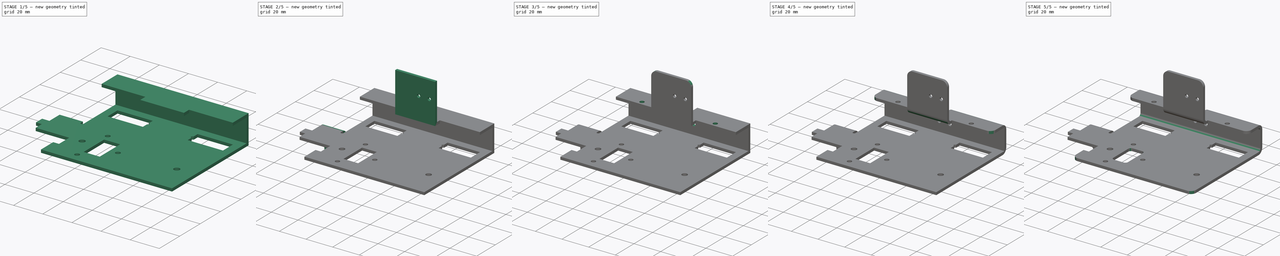
[diagram: build sequence overview — one tinted view per stage of 5, left to right]
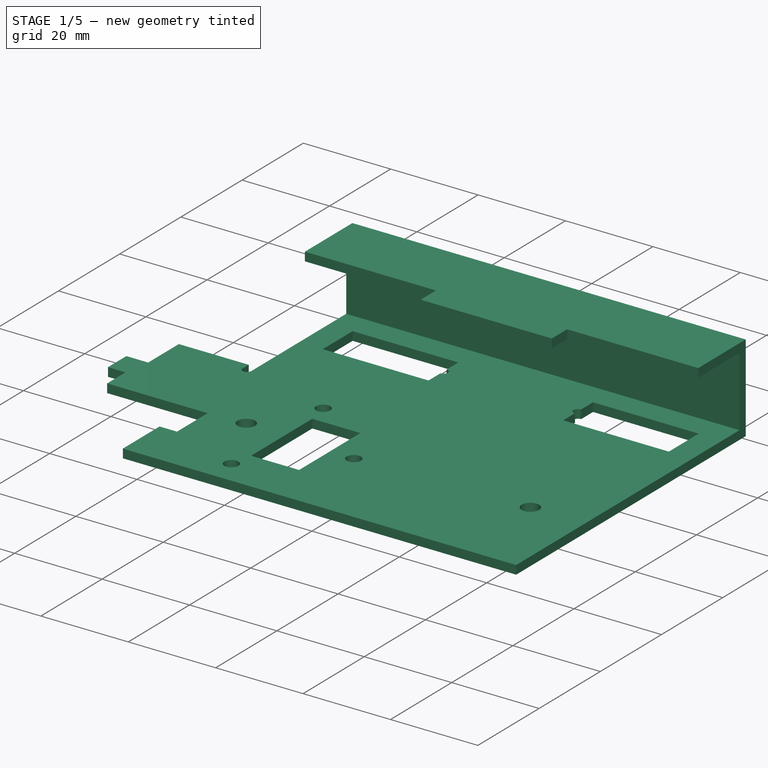
[diagram: stage 1 of 5 — iso view after this stage's code; geometry added in this stage tinted green]
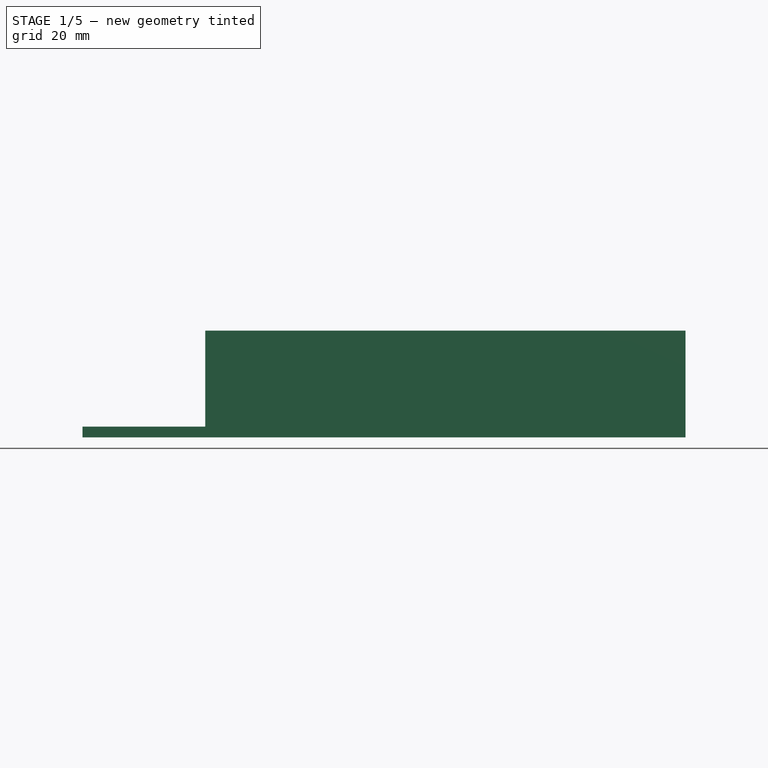
[diagram: stage 1 of 5 — front view after this stage's code; geometry added in this stage tinted green]
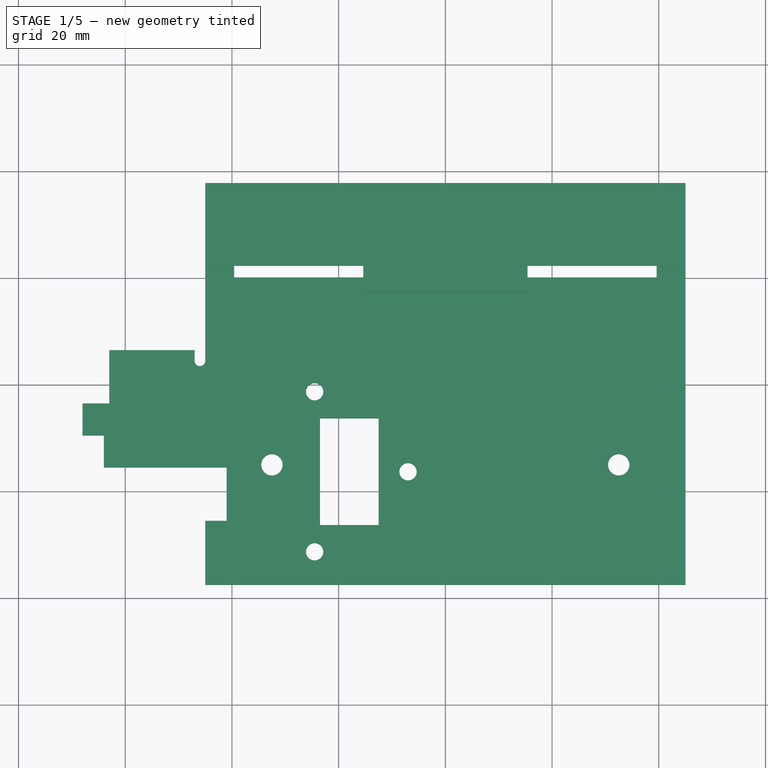
[diagram: stage 1 of 5 — top view after this stage's code; geometry added in this stage tinted green]
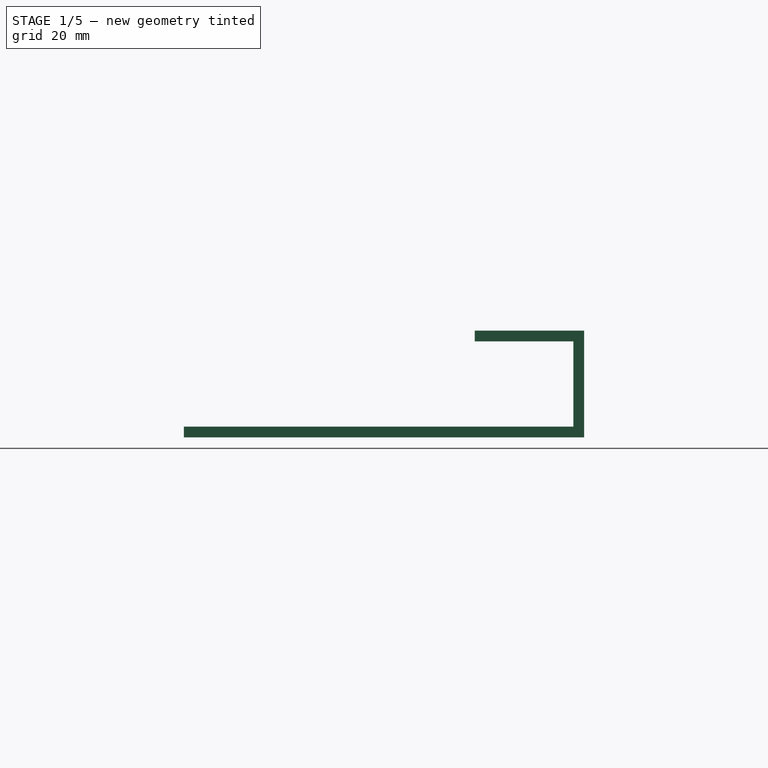
[diagram: stage 1 of 5 — right view after this stage's code; geometry added in this stage tinted green]
FCSTD DOCUMENT  (FreeCAD 0.14R3310 (Git))
Label: 71. PLACA LATERAL MOTOR
License: CC-BY 3.0
LicenseURL: http://creativecommons.org/licenses/by/3.0/
objects: Sketcher::SketchObject×10, PartDesign::Fillet×10, PartDesign::Pad×6, PartDesign::Pocket×4
note: 40 computed .brp shape members not serialized (recipe doc carries the construction recipe); baked Part::Feature solids carry a one-line shape summary decoded from their .brp

FEATURE [Sketcher::SketchObject] Sketch
  sketch-geometry (40):
    g0: LineSegment StartX=-45 StartY=37.5 StartZ=0 EndX=45 EndY=37.5 EndZ=0
    g1: LineSegment StartX=45 StartY=37.5 StartZ=0 EndX=45 EndY=-37.5 EndZ=0
    g2: LineSegment StartX=45 StartY=-37.5 StartZ=0 EndX=-45 EndY=-37.5 EndZ=0
    g3: LineSegment [constr] StartX=-45 StartY=-37.5 StartZ=0 EndX=-45 EndY=37.5 EndZ=0
    g4: LineSegment StartX=-39.6 StartY=29.87 StartZ=0 EndX=-15.4 EndY=29.87 EndZ=0
    g5: LineSegment [constr] StartX=-15.4 StartY=29.87 StartZ=0 EndX=-15.4 EndY=20.12 EndZ=0
    g6: LineSegment StartX=-15.4 StartY=20.12 StartZ=0 EndX=-39.6 EndY=20.12 EndZ=0
    g7: LineSegment StartX=-39.6 StartY=20.12 StartZ=0 EndX=-39.6 EndY=29.87 EndZ=0
    g8: LineSegment StartX=15.4 StartY=29.87 StartZ=0 EndX=39.6 EndY=29.87 EndZ=0
    g9: LineSegment StartX=39.6 StartY=29.87 StartZ=0 EndX=39.6 EndY=20.12 EndZ=0
    g10: LineSegment StartX=39.6 StartY=20.12 StartZ=0 EndX=15.4 EndY=20.12 EndZ=0
    g11: LineSegment [constr] StartX=15.4 StartY=20.12 StartZ=0 EndX=15.4 EndY=29.87 EndZ=0
    g12: ArcOfCircle CenterX=-15.4 CenterY=25 CenterZ=0 NormalX=0 NormalY=0 NormalZ=1 Radius=1 StartAngle=4.71239 EndAngle=7.85398
    g13: ArcOfCircle CenterX=15.4 CenterY=25 CenterZ=0 NormalX=0 NormalY=0 NormalZ=1 Radius=1 StartAngle=1.5708 EndAngle=4.71239
    g14: LineSegment StartX=-15.4 StartY=26 StartZ=0 EndX=-15.4 EndY=29.87 EndZ=0
    g15: LineSegment StartX=-15.4 StartY=24 StartZ=0 EndX=-15.4 EndY=20.12 EndZ=0
    g16: LineSegment StartX=15.4 StartY=29.87 StartZ=0 EndX=15.4 EndY=26 EndZ=0
    g17: LineSegment StartX=15.4 StartY=24 StartZ=0 EndX=15.4 EndY=20.12 EndZ=0
    g18: LineSegment StartX=-23.5 StartY=-6.3 StartZ=0 EndX=-12.5 EndY=-6.3 EndZ=0
    g19: LineSegment StartX=-12.5 StartY=-6.3 StartZ=0 EndX=-12.5 EndY=-26.3 EndZ=0
    g20: LineSegment StartX=-12.5 StartY=-26.3 StartZ=0 EndX=-23.5 EndY=-26.3 EndZ=0
    g21: LineSegment StartX=-23.5 StartY=-26.3 StartZ=0 EndX=-23.5 EndY=-6.3 EndZ=0
    g22: LineSegment StartX=-45 StartY=-25.5 StartZ=0 EndX=-41 EndY=-25.5 EndZ=0
    g23: LineSegment StartX=-45 StartY=-37.5 StartZ=0 EndX=-45 EndY=-25.5 EndZ=0
    g24: LineSegment StartX=-41 StartY=-25.5 StartZ=0 EndX=-41 EndY=-15.5 EndZ=0
    g25: LineSegment StartX=-41 StartY=-15.5 StartZ=0 EndX=-64 EndY=-15.5 EndZ=0
    g26: LineSegment StartX=-64 StartY=-15.5 StartZ=0 EndX=-64 EndY=-9.5 EndZ=0
    g27: LineSegment StartX=-64 StartY=-9.5 StartZ=0 EndX=-68 EndY=-9.5 EndZ=0
    g28: LineSegment StartX=-68 StartY=-9.5 StartZ=0 EndX=-68 EndY=-3.5 EndZ=0
    g29: LineSegment StartX=-68 StartY=-3.5 StartZ=0 EndX=-63 EndY=-3.5 EndZ=0
    g30: LineSegment StartX=-63 StartY=-3.5 StartZ=0 EndX=-63 EndY=6.5 EndZ=0
    g31: LineSegment StartX=-63 StartY=6.5 StartZ=0 EndX=-47 EndY=6.5 EndZ=0
    g32: LineSegment StartX=-45 StartY=37.5 StartZ=0 EndX=-45 EndY=4.49999 EndZ=0
    g33: ArcOfCircle CenterX=-46 CenterY=4.5 CenterZ=0 NormalX=0 NormalY=0 NormalZ=1 Radius=1 StartAngle=3.1416 EndAngle=6.28317
    g34: LineSegment StartX=-47 StartY=6.5 StartZ=0 EndX=-47 EndY=4.49999 EndZ=0
    g35: Circle CenterX=-32.5 CenterY=-15 CenterZ=0 NormalX=0 NormalY=0 NormalZ=1 Radius=2
    g36: Circle CenterX=32.5 CenterY=-15 CenterZ=0 NormalX=0 NormalY=0 NormalZ=1 Radius=2
    g37: Circle CenterX=-24.5 CenterY=-31.3 CenterZ=0 NormalX=0 NormalY=0 NormalZ=1 Radius=1.62
    g38: Circle CenterX=-24.5 CenterY=-1.3 CenterZ=0 NormalX=0 NormalY=0 NormalZ=1 Radius=1.62
    g39: Circle CenterX=-7 CenterY=-16.3 CenterZ=0 NormalX=0 NormalY=0 NormalZ=1 Radius=1.62
  constraints (117):
    c: Coincident(g0,g1)
    c: Coincident(g1,g2)
    c: Coincident(g2,g3)
    c: Coincident(g3,g0)
    c: Horizontal(g0)
    c: Horizontal(g2)
    c: Vertical(g1)
    c: Vertical(g3)
    c: Symmetric(g1,g0,g-1)
    c: Distance(g0) = 90
    c: Distance(g1) = 75
    c: Coincident(g4,g5)
    c: Coincident(g5,g6)
    c: Coincident(g6,g7)
    c: Coincident(g7,g4)
    c: Horizontal(g4)
    c: Horizontal(g6)
    c: Vertical(g5)
    c: Vertical(g7)
    c: Coincident(g8,g9)
    c: Coincident(g9,g10)
    c: Coincident(g10,g11)
    c: Coincident(g11,g8)
    c: Horizontal(g8)
    c: Horizontal(g10)
    c: Vertical(g9)
    c: Vertical(g11)
    c: Symmetric(g8,g4,g-2)
    c: Symmetric(g9,g6,g-2)
    c: Distance(g7) = 9.75
    c: Distance(g4) = 24.2
    c: Distance(g4,g8) = 30.8
    c: Distance(g4,g0) = 7.63
    c: PointOnObject(g12,g5)
    c: PointOnObject(g12,g5)
    c: PointOnObject(g12,g5)
    c: PointOnObject(g13,g11)
    c: PointOnObject(g13,g11)
    c: PointOnObject(g13,g11)
    c: Equal(g13,g12)
    c: Coincident(g14,g12)
    c: Coincident(g14,g4)
    c: Distance(g4,g12) = 3.87
    c: Radius(g12) = 1
    c: Coincident(g15,g12)
    c: Coincident(g15,g5)
    c: Coincident(g16,g8)
    c: Coincident(g16,g13)
    c: Distance(g8,g13) = 3.87
    c: Coincident(g17,g13)
    c: Coincident(g17,g10)
    c: Coincident(g18,g19)
    c: Coincident(g19,g20)
    c: Coincident(g20,g21)
    c: Coincident(g21,g18)
    c: Horizontal(g18)
    c: Horizontal(g20)
    c: Vertical(g19)
    c: Vertical(g21)
    c: Distance(g18) = 11
    c: Distance(g19) = 20
    c: DistanceX(g-2,g18) = -12.5
    c: DistanceY(g-1,g18) = -6.3
    c: PointOnObject(g22,g3)
    c: Horizontal(g22)
    c: Distance(g22,g2) = 12
    c: Distance(g22) = 4
    c: Coincident(g23,g2)
    c: Coincident(g23,g22)
    c: Coincident(g24,g22)
    c: Vertical(g24)
    c: Distance(g24) = 10
    c: Coincident(g25,g24)
    c: Horizontal(g25)
    c: Distance(g25) = 23
    c: Coincident(g26,g25)
    c: Vertical(g26)
    c: Distance(g26) = 6
    c: Coincident(g27,g26)
    c: Horizontal(g27)
    c: Distance(g27) = 4
    c: Coincident(g28,g27)
    c: Vertical(g28)
    c: Distance(g28) = 6
    c: Coincident(g29,g28)
    c: Horizontal(g29)
    c: Distance(g29) = 5
    c: Coincident(g30,g29)
    c: Vertical(g30)
    c: Distance(g30) = 10
    c: Coincident(g31,g30)
    c: Horizontal(g31)
    c: Distance(g31) = 16
    c: Coincident(g32,g0)
    c: PointOnObject(g32,g3)
    c: PointOnObject(g33,g3)
    c: Coincident(g32,g33)
    c: Tangent(g3,g33)
    c: Coincident(g34,g31)
    c: Coincident(g34,g33)
    c: Vertical(g34)
    c: Tangent(g33,g34)
    c: Distance(g33,g0) = 33
    c: Equal(g36,g35)
    c: Radius(g35) = 2
    c: Symmetric(g36,g35,g-2)
    c: Distance(g35,g2) = 22.5
    c: Distance(g35,g36) = 65
    c: Distance(g37,g2) = 6.2
    c: Radius(g37) = 1.62
    c: Distance(g37,g21) = 1
    c: Equal(g38,g37)
    c: Distance(g38,g21) = 1
    c: Distance(g38,g37) = 30
    c: Equal(g39,g38)
    c: Distance(g39,g19) = 5.5
    c: Distance(g39,g2) = 21.2
FEATURE [PartDesign::Pad] Pad
  Length = 2
  Length2 = 100
  Sketch = -> Sketch
  Type = 0
FEATURE [Sketcher::SketchObject] Sketch001
  ExternalGeometry = -> [Pad]
  Placement = pos=(0,37.5,0) rot=(0,0.707107,0.707107;3.14159rad)
  Support = -> Pad [Face16]
  sketch-geometry (4):
    g0: LineSegment StartX=-45 StartY=0 StartZ=0 EndX=45 EndY=0 EndZ=0
    g1: LineSegment StartX=45 StartY=0 StartZ=0 EndX=45 EndY=20 EndZ=0
    g2: LineSegment StartX=45 StartY=20 StartZ=0 EndX=-45 EndY=20 EndZ=0
    g3: LineSegment StartX=-45 StartY=20 StartZ=0 EndX=-45 EndY=0 EndZ=0
  constraints (12):
    c: Coincident(g0,g1)
    c: Coincident(g1,g2)
    c: Coincident(g2,g3)
    c: Coincident(g3,g0)
    c: Horizontal(g0)
    c: Horizontal(g2)
    c: Vertical(g1)
    c: Vertical(g3)
    c: PointOnObject(g0,g-1)
    c: Coincident(g0,g-4)
    c: Distance(g1) = 20
    c: Coincident(g0,g-3)
FEATURE [PartDesign::Pad] Pad001
  Length = 2
  Length2 = 100
  Reversed = true
  Sketch = -> Sketch001
  Type = 0
FEATURE [Sketcher::SketchObject] Sketch002
  ExternalGeometry = -> [Pad001]
  Placement = pos=(0,0,20) rot=(0,0,1;0rad)
  Support = -> Pad001 [Face37]
  sketch-geometry (4):
    g0: LineSegment StartX=-45 StartY=37.5 StartZ=0 EndX=45 EndY=37.5 EndZ=0
    g1: LineSegment StartX=45 StartY=37.5 StartZ=0 EndX=45 EndY=22 EndZ=0
    g2: LineSegment StartX=45 StartY=22 StartZ=0 EndX=-45 EndY=22 EndZ=0
    g3: LineSegment StartX=-45 StartY=22 StartZ=0 EndX=-45 EndY=37.5 EndZ=0
  constraints (11):
    c: Coincident(g0,g1)
    c: Coincident(g1,g2)
    c: Coincident(g2,g3)
    c: Coincident(g3,g0)
    c: Horizontal(g0)
    c: Horizontal(g2)
    c: Vertical(g1)
    c: Vertical(g3)
    c: Coincident(g0,g-4)
    c: Coincident(g0,g-3)
    c: Distance(g1) = 15.5
FEATURE [PartDesign::Pad] Pad002
  Length = 2
  Length2 = 100
  Reversed = true
  Sketch = -> Sketch002
  Type = 0
FEATURE [Sketcher::SketchObject] Sketch003
  ExternalGeometry = -> [Pad002]
  Placement = pos=(0,22,0) rot=(1,0,0;1.5708rad)
  Support = -> Pad002 [Face39]
  sketch-geometry (4):
    g0: LineSegment StartX=-15 StartY=20 StartZ=0 EndX=15 EndY=20 EndZ=0
    g1: LineSegment StartX=15 StartY=20 StartZ=0 EndX=15 EndY=18 EndZ=0
    g2: LineSegment StartX=15 StartY=18 StartZ=0 EndX=-15 EndY=18 EndZ=0
    g3: LineSegment StartX=-15 StartY=18 StartZ=0 EndX=-15 EndY=20 EndZ=0
  constraints (12):
    c: Coincident(g0,g1)
    c: Coincident(g1,g2)
    c: Coincident(g2,g3)
    c: Coincident(g3,g0)
    c: Horizontal(g0)
    c: Horizontal(g2)
    c: Vertical(g1)
    c: Vertical(g3)
    c: PointOnObject(g0,g-3)
    c: Symmetric(g0,g0,g-2)
    c: Distance(g2) = 30
    c: Distance(g3) = 2
FEATURE [PartDesign::Pad] Pad003
  Length = 5
  Length2 = 100
  Sketch = -> Sketch003
  Type = 0
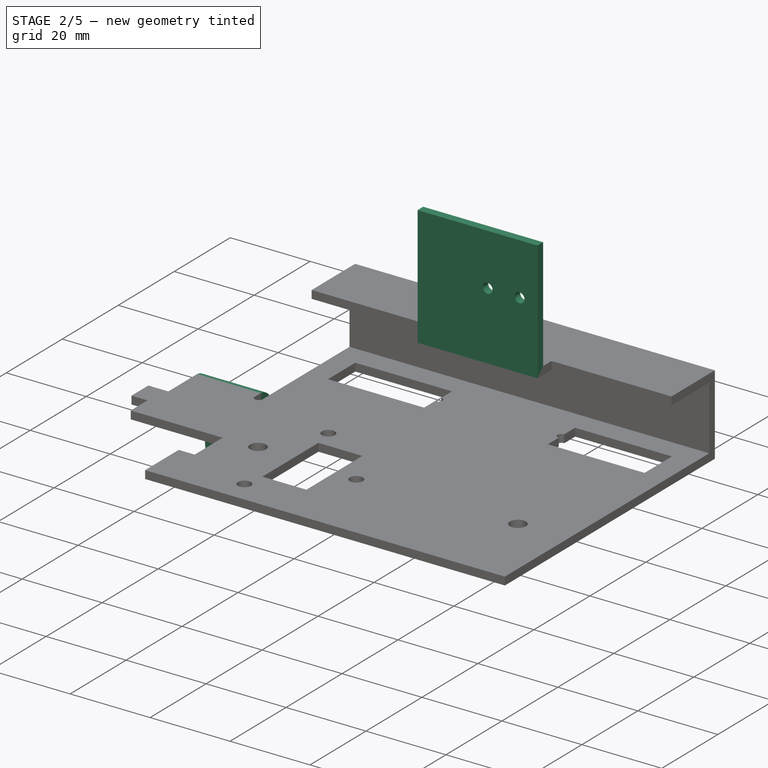
[diagram: stage 2 of 5 — iso view after this stage's code; geometry added in this stage tinted green]
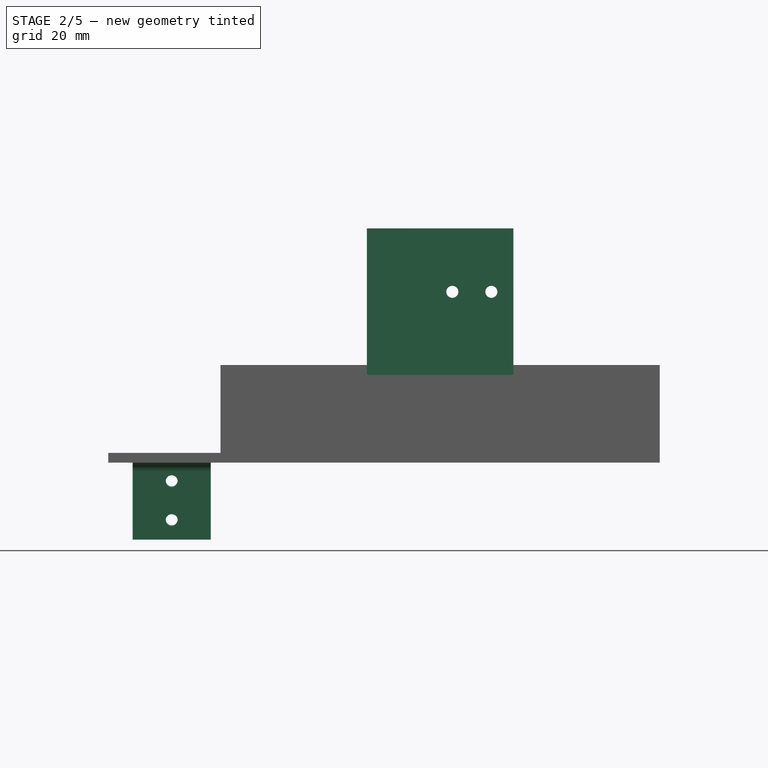
[diagram: stage 2 of 5 — front view after this stage's code; geometry added in this stage tinted green]
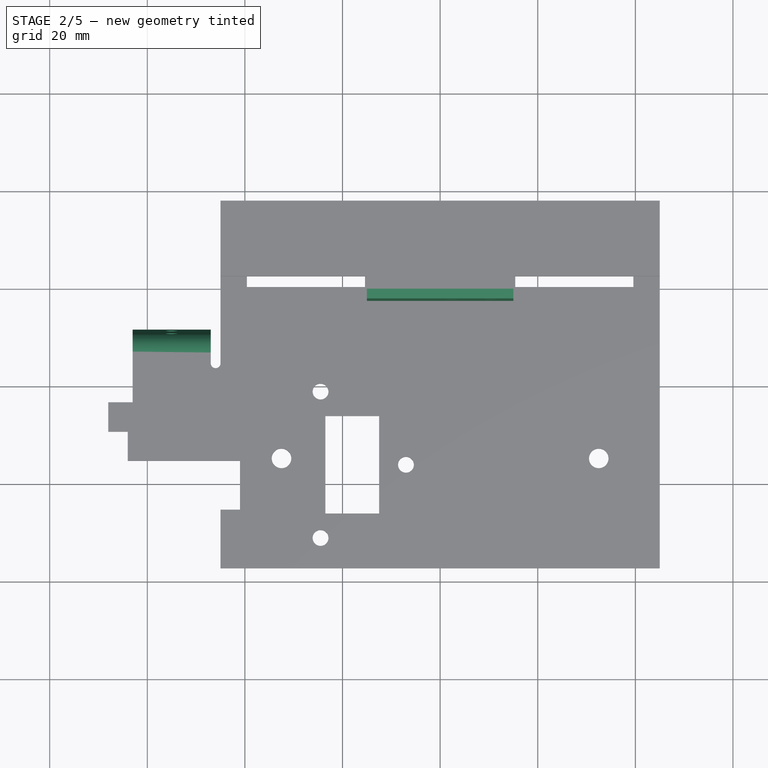
[diagram: stage 2 of 5 — top view after this stage's code; geometry added in this stage tinted green]
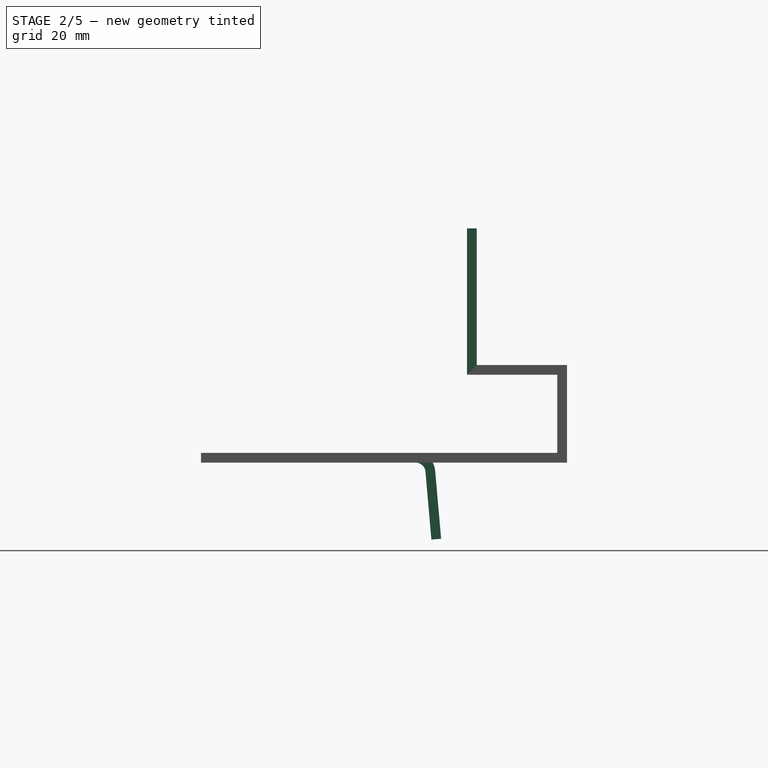
[diagram: stage 2 of 5 — right view after this stage's code; geometry added in this stage tinted green]
FEATURE [Sketcher::SketchObject] Sketch004
  ExternalGeometry = -> [Pad003]
  Placement = pos=(0,17,0) rot=(1,0,0;1.5708rad)
  Support = -> Pad003 [Face45]
  sketch-geometry (4):
    g0: LineSegment StartX=-15 StartY=18 StartZ=0 EndX=15 EndY=18 EndZ=0
    g1: LineSegment StartX=15 StartY=18 StartZ=0 EndX=15 EndY=48 EndZ=0
    g2: LineSegment StartX=15 StartY=48 StartZ=0 EndX=-15 EndY=48 EndZ=0
    g3: LineSegment StartX=-15 StartY=48 StartZ=0 EndX=-15 EndY=18 EndZ=0
  constraints (11):
    c: Coincident(g0,g1)
    c: Coincident(g1,g2)
    c: Coincident(g2,g3)
    c: Coincident(g3,g0)
    c: Horizontal(g0)
    c: Horizontal(g2)
    c: Vertical(g1)
    c: Vertical(g3)
    c: Coincident(g0,g-3)
    c: PointOnObject(g0,g-4)
    c: Distance(g1) = 30
FEATURE [PartDesign::Pad] Pad004
  Length = 2
  Length2 = 100
  Reversed = true
  Sketch = -> Sketch004
  Type = 0
FEATURE [Sketcher::SketchObject] Sketch005
  ExternalGeometry = -> [Pad004]
  Placement = pos=(-63,0,0) rot=(0.57735,-0.57735,-0.57735;2.0944rad)
  Support = -> Pad004 [Face20]
  sketch-geometry (6):
    g0: ArcOfCircle CenterX=-6.5 CenterY=-2 CenterZ=0 NormalX=0 NormalY=0 NormalZ=1 Radius=2 StartAngle=1.5708 EndAngle=3.05433
    g1: LineSegment StartX=-8.49239 StartY=-1.82569 StartZ=0 EndX=-9.71257 EndY=-15.7724 EndZ=0
    g2: LineSegment StartX=-9.71257 StartY=-15.7724 StartZ=0 EndX=-11.705 EndY=-15.5981 EndZ=0
    g3: LineSegment StartX=-11.705 StartY=-15.5981 StartZ=0 EndX=-10.4848 EndY=-1.65136 EndZ=0
    g4: ArcOfCircle CenterX=-6.5 CenterY=-2 CenterZ=0 NormalX=0 NormalY=0 NormalZ=1 Radius=4 StartAngle=1.5708 EndAngle=3.05432
    g5: LineSegment StartX=-6.5 StartY=2 StartZ=0 EndX=-6.5 EndY=0 EndZ=0
  constraints (17):
    c: Coincident(g0,g-3)
    c: Radius(g0) = 2
    c: Tangent(g0,g-1)
    c: Coincident(g1,g0)
    c: Tangent(g1,g0)
    c: Angle(g1,g-1) = 1.65806
    c: Distance(g1) = 14
    c: Coincident(g2,g1)
    c: Angle(g1,g2) = 1.5708
    c: Distance(g2) = 2
    c: Coincident(g3,g2)
    c: Distance(g3,g0) = 2
    c: Coincident(g4,g0)
    c: Coincident(g4,g-3)
    c: Coincident(g4,g3)
    c: Coincident(g5,g4)
    c: Coincident(g5,g0)
FEATURE [PartDesign::Pad] Pad005
  Length = 16
  Length2 = 100
  Reversed = true
  Sketch = -> Sketch005
  Type = 0
FEATURE [Sketcher::SketchObject] Sketch006
  ExternalGeometry = -> [Pad005]
  Placement = pos=(0,19,0) rot=(0,0.707107,0.707107;3.14159rad)
  Support = -> Pad005 [Face50]
  sketch-geometry (2):
    g0: Circle CenterX=-10.5 CenterY=35 CenterZ=0 NormalX=0 NormalY=0 NormalZ=1 Radius=1.23
    g1: Circle CenterX=-2.5 CenterY=35 CenterZ=0 NormalX=0 NormalY=0 NormalZ=1 Radius=1.23
  constraints (6):
    c: Equal(g1,g0)
    c: Radius(g1) = 1.23
    c: Distance(g1,g0) = 8
    c: Distance(g0,g-3) = 13
    c: Distance(g1,g-3) = 13
    c: Distance(g0,g-4) = 4.5
FEATURE [PartDesign::Pocket] Pocket
  Length = 5
  Sketch = -> Sketch006
  Type = 0
FEATURE [Sketcher::SketchObject] Sketch007
  ExternalGeometry = -> [Pocket]
  Placement = pos=(0,10.2618,0.897787) rot=(0,0.67559,0.737277;3.14159rad)
  Support = -> Pocket [Face9]
  sketch-geometry (2):
    g0: Circle CenterX=55 CenterY=-4.5589 CenterZ=0 NormalX=0 NormalY=0 NormalZ=1 Radius=1.23
    g1: Circle CenterX=55 CenterY=-12.5589 CenterZ=0 NormalX=0 NormalY=0 NormalZ=1 Radius=1.23
  constraints (6):
    c: Equal(g0,g1)
    c: Radius(g0) = 1.23
    c: Distance(g1,g-4) = 8
    c: Distance(g0,g-4) = 8
    c: Distance(g0,g1) = 8
    c: Distance(g1,g-3) = 4
FEATURE [PartDesign::Pocket] Pocket001
  Length = 5
  Sketch = -> Sketch007
  Type = 0
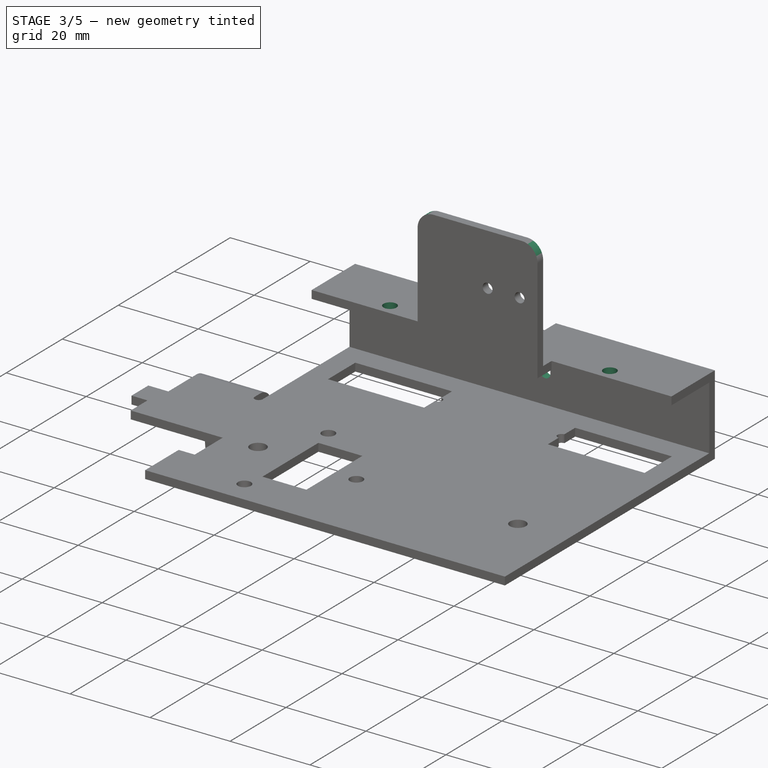
[diagram: stage 3 of 5 — iso view after this stage's code; geometry added in this stage tinted green]
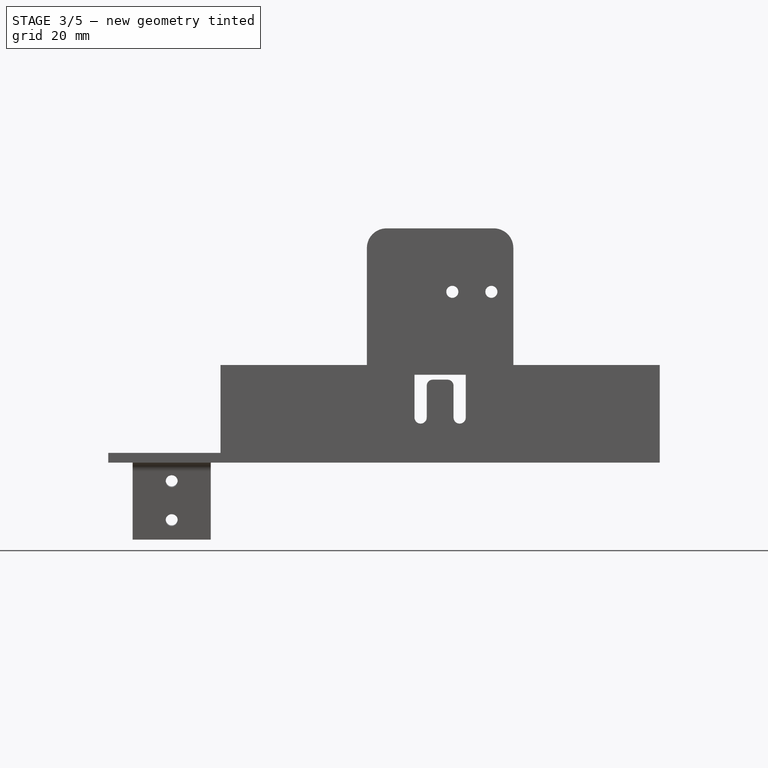
[diagram: stage 3 of 5 — front view after this stage's code; geometry added in this stage tinted green]
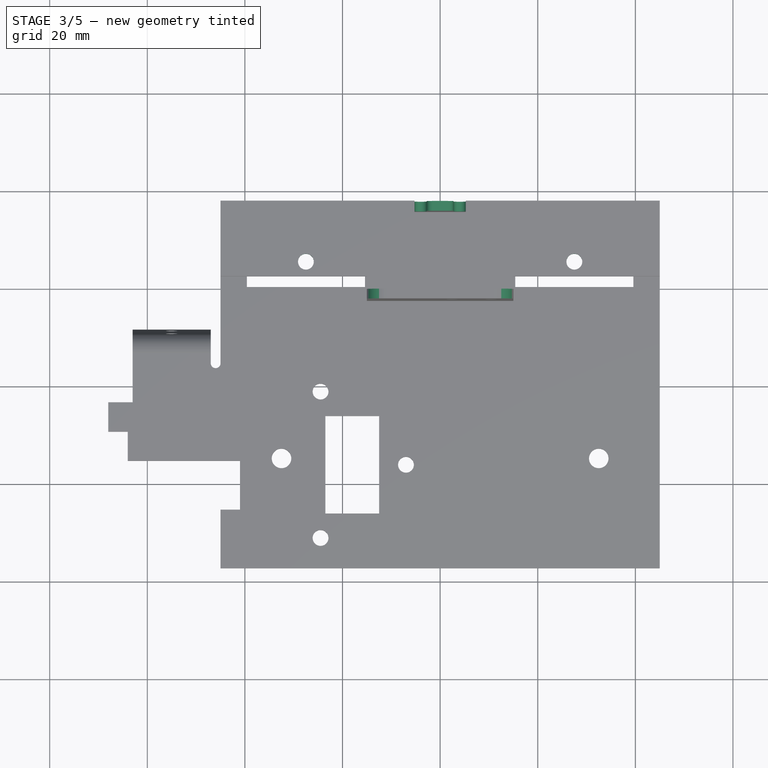
[diagram: stage 3 of 5 — top view after this stage's code; geometry added in this stage tinted green]
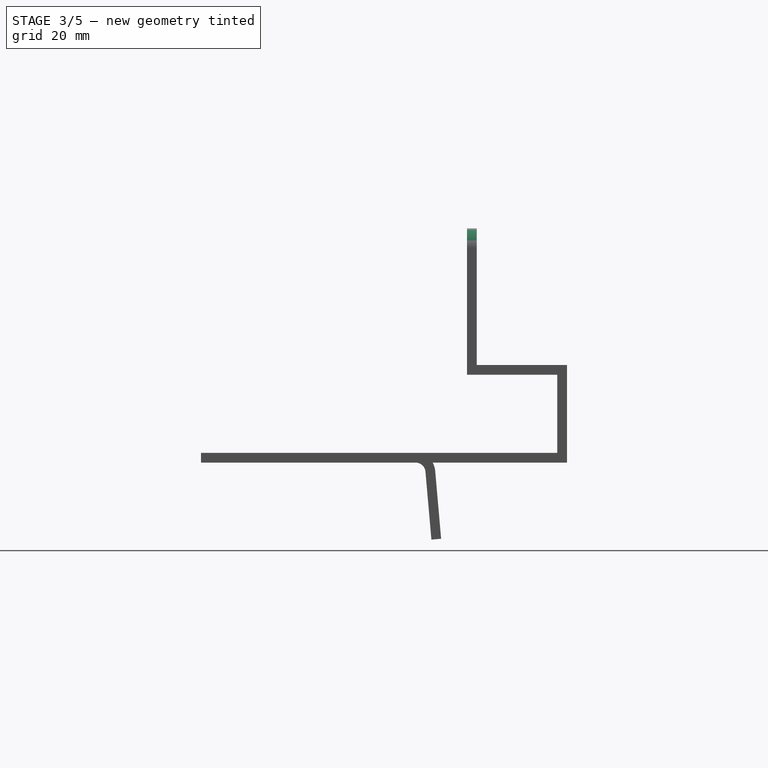
[diagram: stage 3 of 5 — right view after this stage's code; geometry added in this stage tinted green]
FEATURE [Sketcher::SketchObject] Sketch008
  ExternalGeometry = -> [Pocket001]
  Placement = pos=(0,0,20) rot=(0,0,1;0rad)
  Support = -> Pocket001 [Face14]
  sketch-geometry (2):
    g0: Circle CenterX=-27.5 CenterY=25 CenterZ=0 NormalX=0 NormalY=0 NormalZ=1 Radius=1.62
    g1: Circle CenterX=27.5 CenterY=25 CenterZ=0 NormalX=0 NormalY=0 NormalZ=1 Radius=1.62
  constraints (5):
    c: Distance(g1,g0) = 55
    c: Symmetric(g1,g0,g-2)
    c: Equal(g1,g0)
    c: Radius(g0) = 1.62
    c: Distance(g0,g-3) = 3
FEATURE [PartDesign::Pocket] Pocket002
  Length = 5
  Sketch = -> Sketch008
  Type = 0
FEATURE [Sketcher::SketchObject] Sketch009
  ExternalGeometry = -> [Pocket002]
  Placement = pos=(0,37.5,0) rot=(0,0.707107,0.707107;3.14159rad)
  Support = -> Pocket002 [Face15]
  sketch-geometry (8):
    g0: LineSegment StartX=-5.25 StartY=20 StartZ=0 EndX=-5.25 EndY=9.25 EndZ=0
    g1: LineSegment StartX=5.25 StartY=20 StartZ=0 EndX=5.25 EndY=9.25001 EndZ=0
    g2: LineSegment StartX=-5.25 StartY=20 StartZ=0 EndX=5.25 EndY=20 EndZ=0
    g3: ArcOfCircle CenterX=-4 CenterY=9.25 CenterZ=0 NormalX=0 NormalY=0 NormalZ=1 Radius=1.25 StartAngle=3.14159 EndAngle=6.28319
    g4: ArcOfCircle CenterX=4 CenterY=9.25001 CenterZ=0 NormalX=0 NormalY=0 NormalZ=1 Radius=1.25 StartAngle=3.1416 EndAngle=6.28319
    g5: LineSegment StartX=-2.75 StartY=9.25 StartZ=0 EndX=-2.75 EndY=17 EndZ=0
    g6: LineSegment StartX=2.75 StartY=9.25 StartZ=0 EndX=2.75 EndY=17 EndZ=0
    g7: LineSegment StartX=-2.75 StartY=17 StartZ=0 EndX=2.75 EndY=17 EndZ=0
  constraints (25):
    c: PointOnObject(g0,g-3)
    c: Vertical(g0)
    c: PointOnObject(g1,g-3)
    c: Vertical(g1)
    c: Coincident(g2,g0)
    c: Coincident(g2,g1)
    c: Coincident(g3,g0)
    c: Coincident(g4,g1)
    c: Symmetric(g4,g3,g-2)
    c: Radius(g4) = 1.25
    c: Equal(g3,g4)
    c: Distance(g1,g0) = 10.5
    c: Tangent(g3,g0)
    c: Tangent(g4,g1)
    c: Coincident(g5,g3)
    c: Vertical(g5)
    c: Coincident(g6,g4)
    c: Vertical(g6)
    c: Tangent(g6,g4)
    c: Tangent(g5,g3)
    c: Coincident(g7,g5)
    c: Coincident(g7,g6)
    c: Horizontal(g7)
    c: Distance(g6) = 7.75
    c: Distance(g5,g2) = 3
FEATURE [PartDesign::Pocket] Pocket003
  Length = 8
  Sketch = -> Sketch009
  Type = 0
FEATURE [PartDesign::Fillet] Fillet
  Base = -> Pocket003 [Edge180,Edge181,Edge184,Edge178]
  Radius = 1.25
FEATURE [PartDesign::Fillet] Fillet001
  Base = -> Fillet [Edge113,Edge121]
  Radius = 4
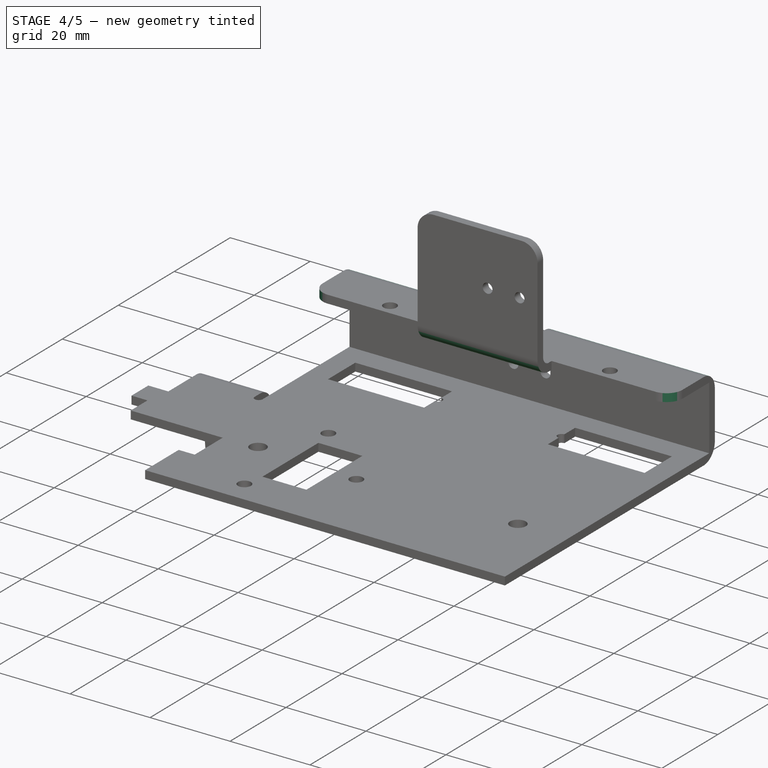
[diagram: stage 4 of 5 — iso view after this stage's code; geometry added in this stage tinted green]
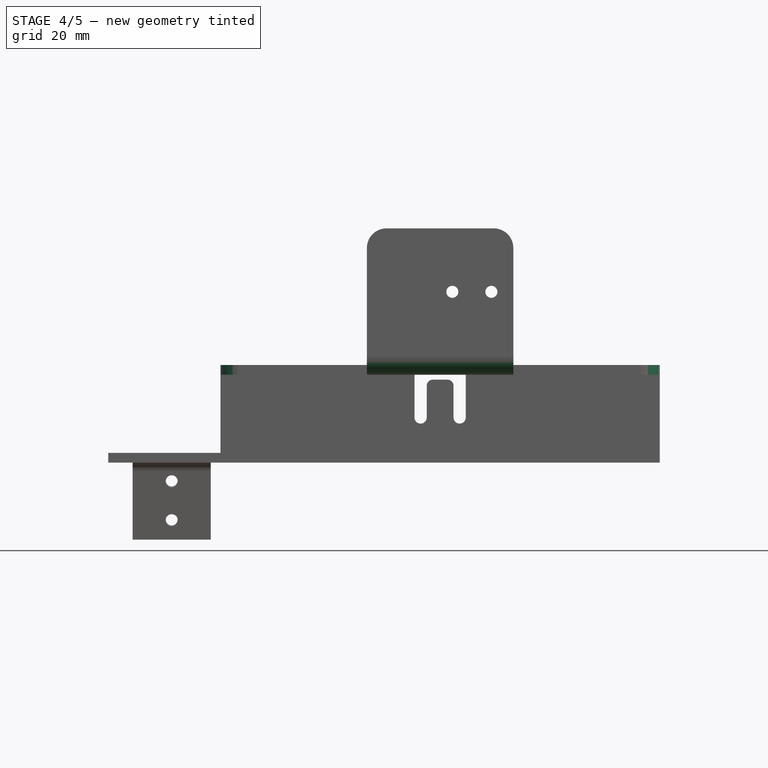
[diagram: stage 4 of 5 — front view after this stage's code; geometry added in this stage tinted green]
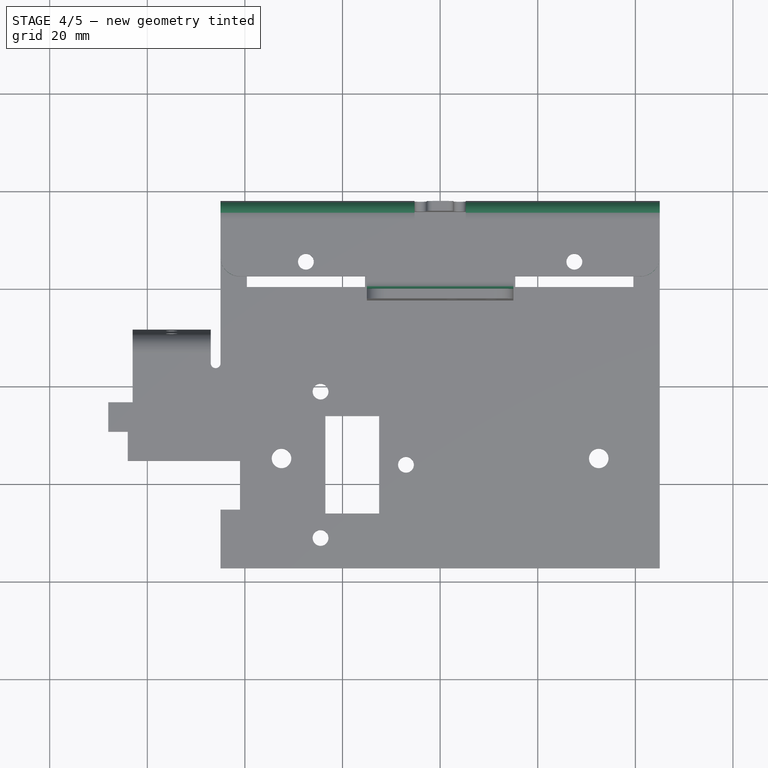
[diagram: stage 4 of 5 — top view after this stage's code; geometry added in this stage tinted green]
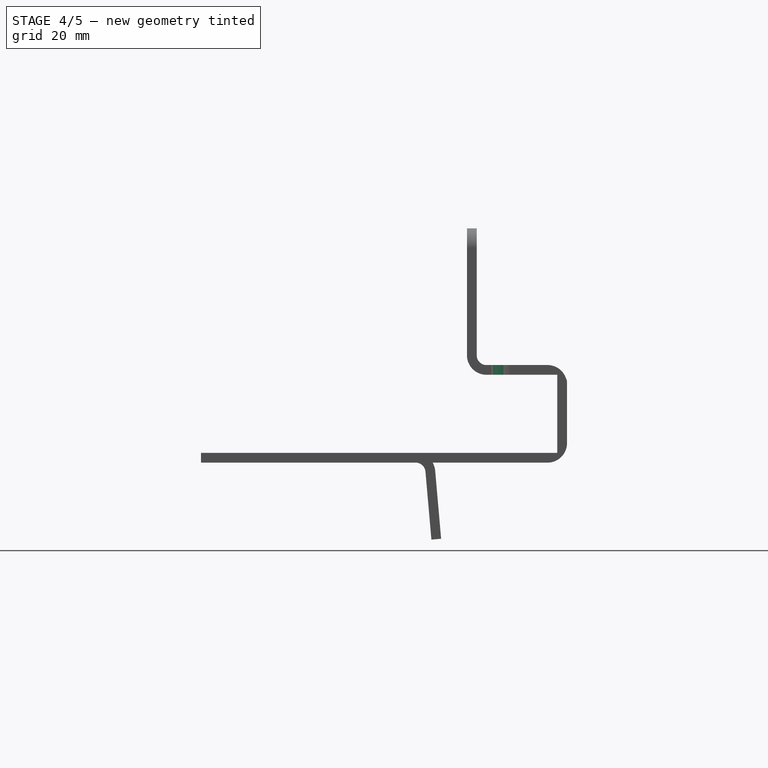
[diagram: stage 4 of 5 — right view after this stage's code; geometry added in this stage tinted green]
FEATURE [PartDesign::Fillet] Fillet002
  Base = -> Fillet001 [Edge30]
  Radius = 2
FEATURE [PartDesign::Fillet] Fillet003
  Base = -> Fillet002 [Edge33]
  Radius = 4
FEATURE [PartDesign::Fillet] Fillet004
  Base = -> Fillet003 [Edge41,Edge67]
  Radius = 4
FEATURE [PartDesign::Fillet] Fillet005
  Base = -> Fillet004 [Edge82,Edge137,Edge83]
  Radius = 4
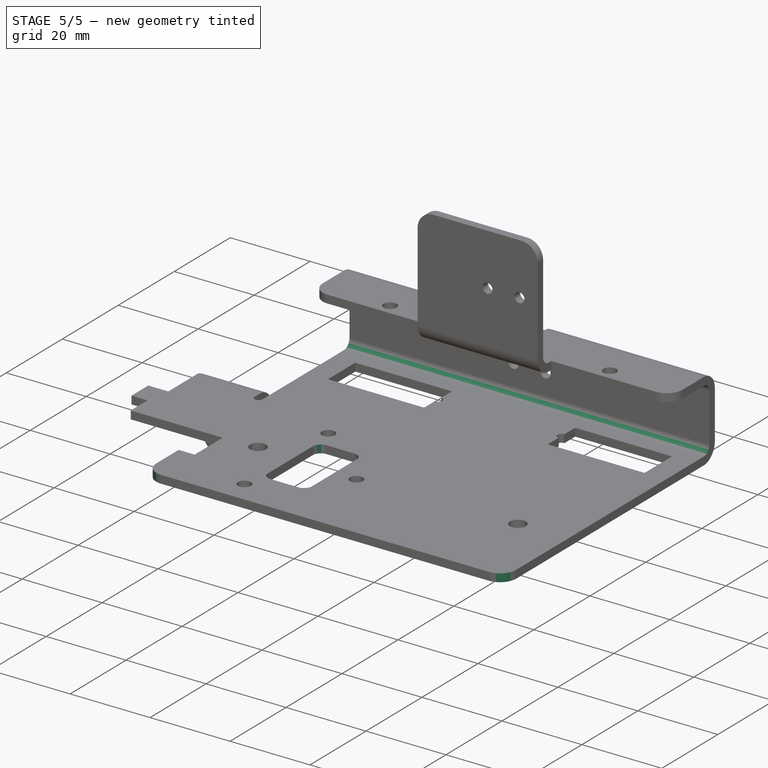
[diagram: stage 5 of 5 — iso view after this stage's code; geometry added in this stage tinted green]
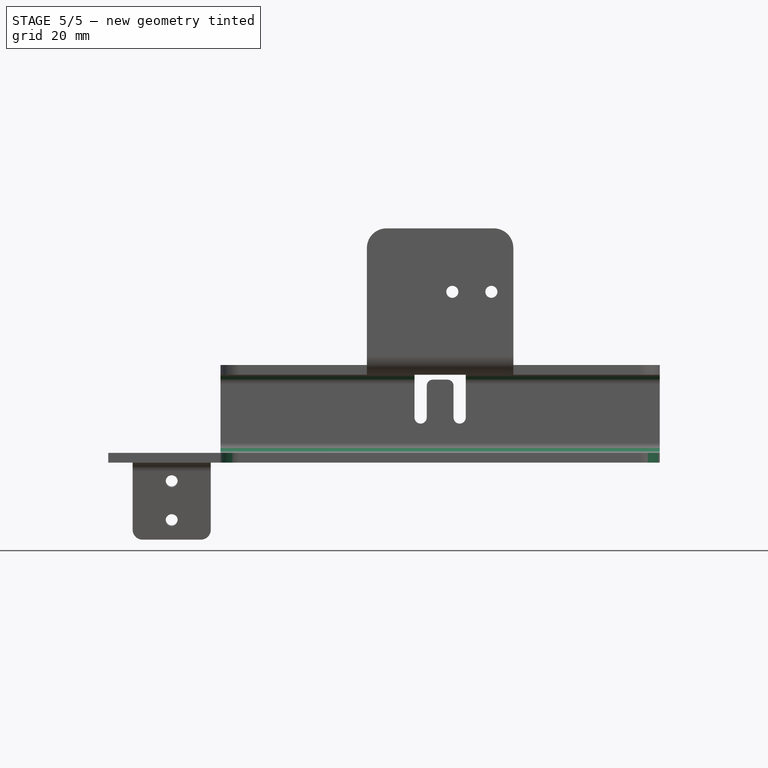
[diagram: stage 5 of 5 — front view after this stage's code; geometry added in this stage tinted green]
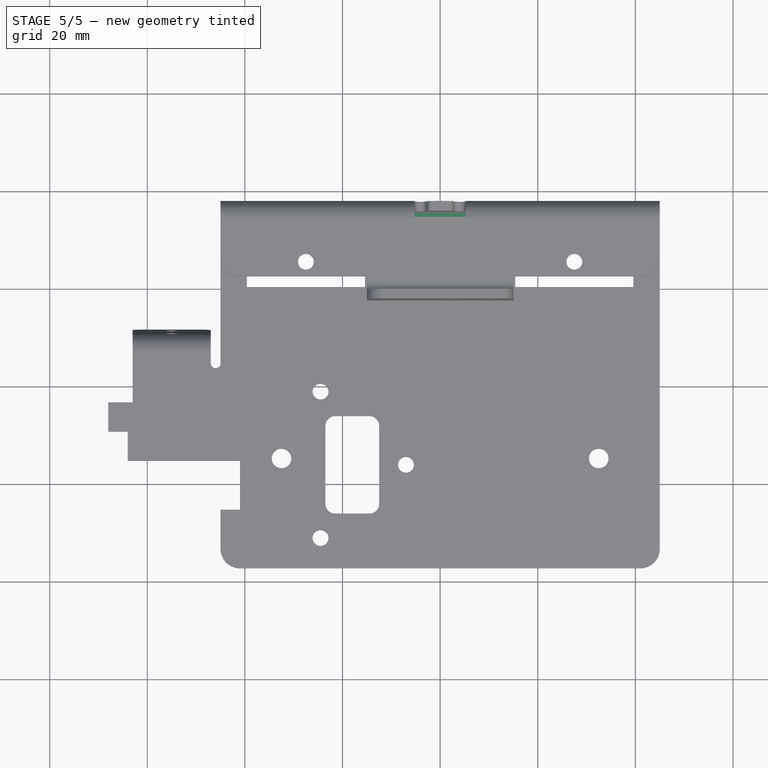
[diagram: stage 5 of 5 — top view after this stage's code; geometry added in this stage tinted green]
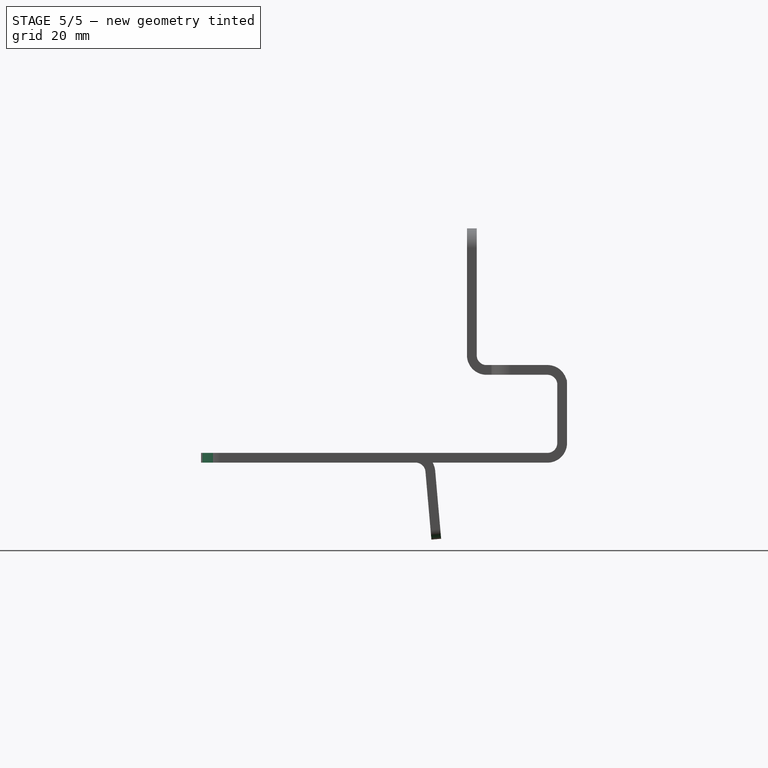
[diagram: stage 5 of 5 — right view after this stage's code; geometry added in this stage tinted green]
FEATURE [PartDesign::Fillet] Fillet006
  Base = -> Fillet005 [Edge47,Edge56,Edge70]
  Radius = 2
FEATURE [PartDesign::Fillet] Fillet007
  Base = -> Fillet006 [Edge197,Edge188]
  Radius = 2
FEATURE [PartDesign::Fillet] Fillet008
  Base = -> Fillet007 [Edge116,Edge112]
  Radius = 4
FEATURE [PartDesign::Fillet] Fillet009
  Base = -> Fillet008 [Edge124,Edge127,Edge129,Edge125]
  Radius = 2
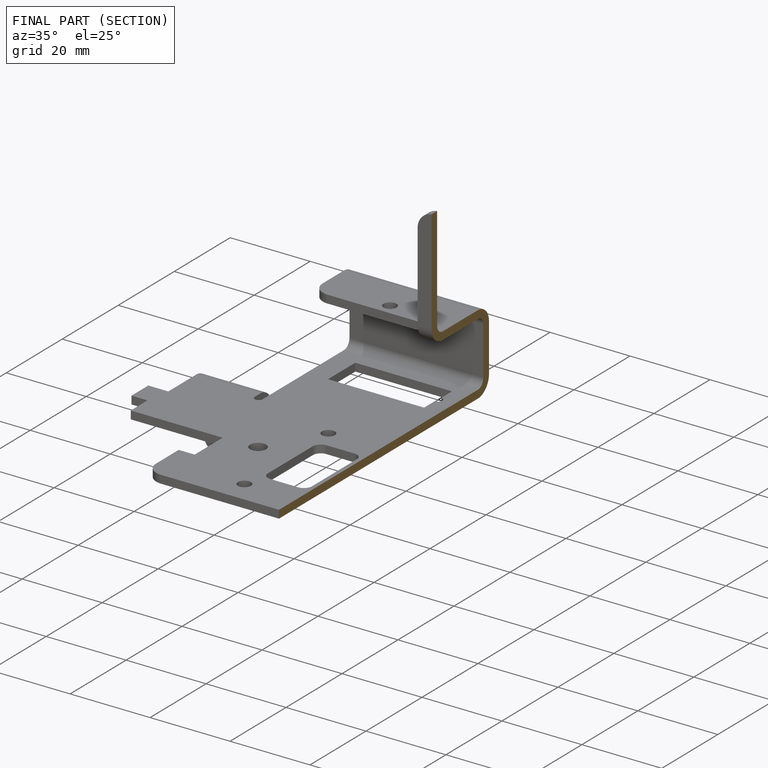
[diagram: finished part — half-section view (interior)]
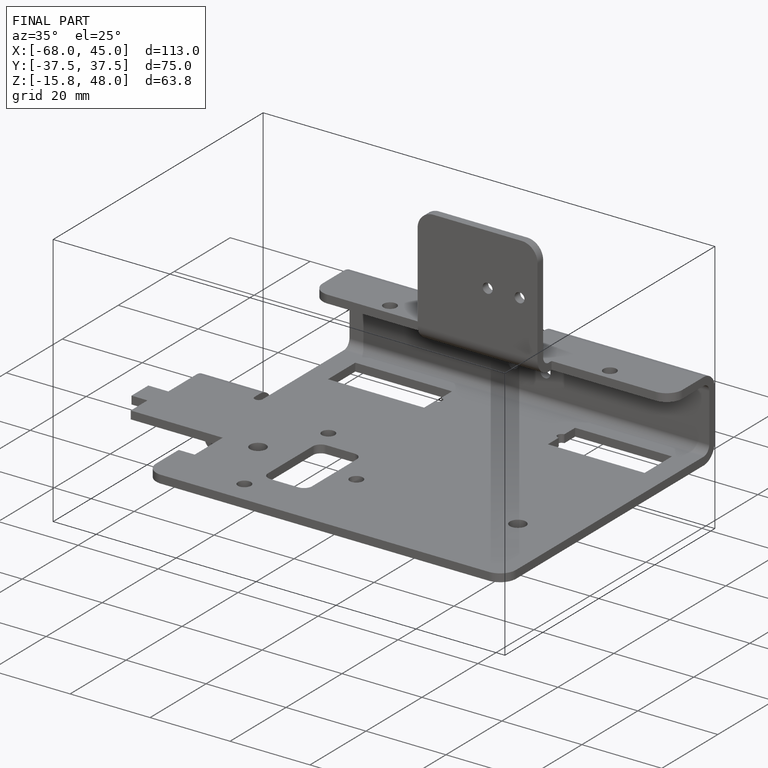
[diagram: finished part — iso view with bounding-box wireframe]
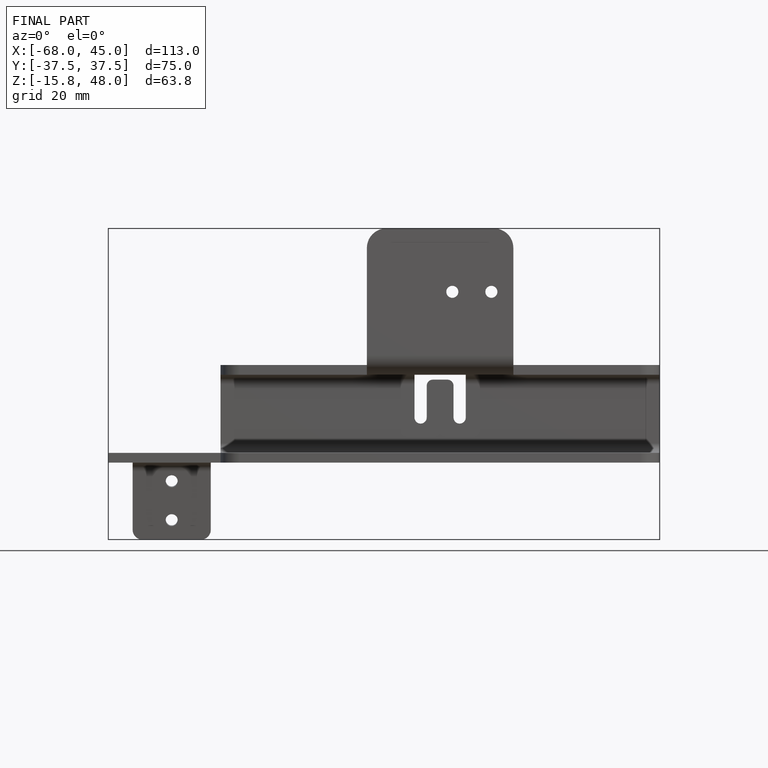
[diagram: finished part — front view with bounding-box wireframe]
